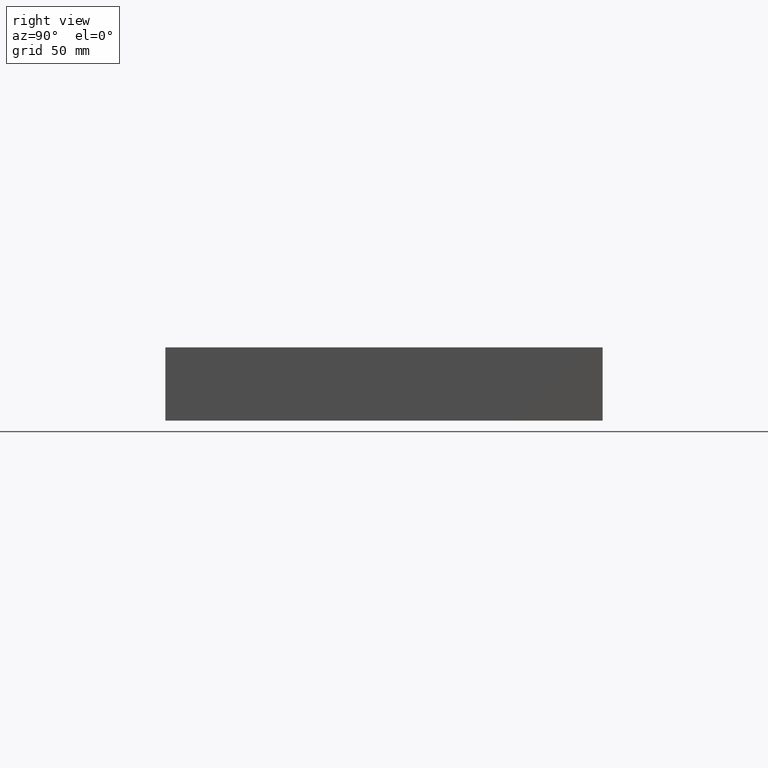
[diagram: clean part render]
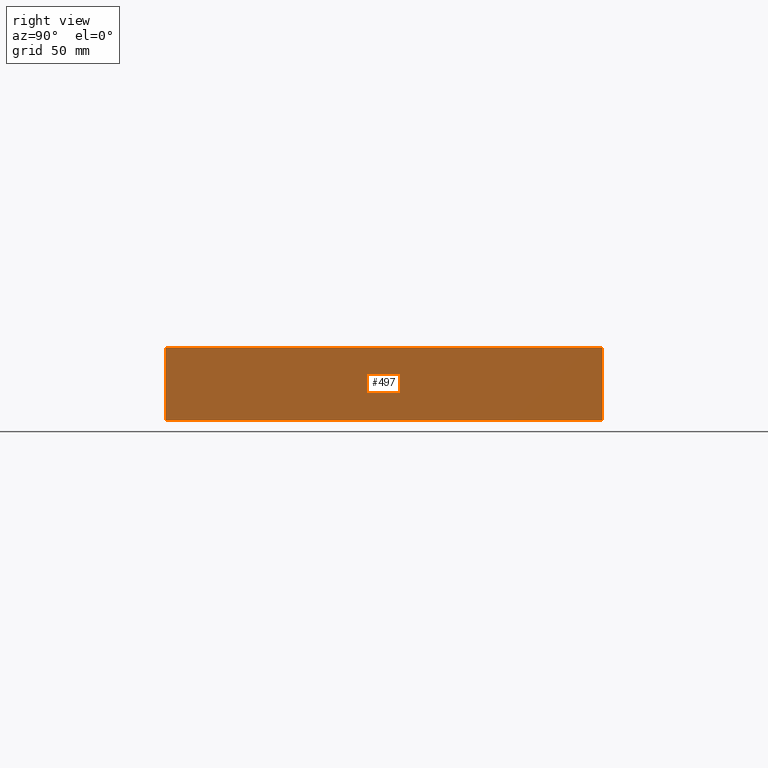
[diagram: same view with one face highlighted and labeled with its STEP entity id]
A machine part, right view. The second image highlights one B-rep face of the part: STEP entity #497.
In plain terms, the highlighted planar face has unit normal (1, -0, 0).
Its self-contained STEP definition (entity closure, byte-faithful):
#497 = ADVANCED_FACE( '', ( #1040 ), #1041, .T. );
#1040 = FACE_OUTER_BOUND( '', #1661, .T. );
#1041 = PLANE( '', #1662 );
#1661 = EDGE_LOOP( '', ( #3327, #3328, #3329, #3330 ) );
#1662 = AXIS2_PLACEMENT_3D( '', #3331, #3332, #3333 );
#3327 = ORIENTED_EDGE( '', *, *, #4221, .F. );
#3328 = ORIENTED_EDGE( '', *, *, #4177, .F. );
#3329 = ORIENTED_EDGE( '', *, *, #3922, .T. );
#3330 = ORIENTED_EDGE( '', *, *, #3949, .T. );
#3331 = CARTESIAN_POINT( '', ( 139.000000000000, 6.75807294783561E-015, -35.0000000000000 ) );
#3332 = DIRECTION( '', ( 1.00000000000000, -2.65603594407932E-016, 0.000000000000000 ) );
#3333 = DIRECTION( '', ( 2.65603594407932E-016, 1.00000000000000, 0.000000000000000 ) );
#3922 = EDGE_CURVE( '', #4598, #4596, #4599, .T. );
#3949 = EDGE_CURVE( '', #4596, #4638, #4641, .T. );
#4177 = EDGE_CURVE( '', #4598, #4963, #4965, .T. );
#4221 = EDGE_CURVE( '', #4963, #4638, #5024, .T. );
#4596 = VERTEX_POINT( '', #5996 );
#4598 = VERTEX_POINT( '', #5999 );
#4599 = LINE( '', #6000, #6001 );
#4638 = VERTEX_POINT( '', #6055 );
#4641 = LINE( '', #6059, #6060 );
#4963 = VERTEX_POINT( '', #6885 );
#4965 = LINE( '', #6888, #6889 );
#5024 = LINE( '', #7039, #7040 );
#5996 = CARTESIAN_POINT( '', ( 139.000000000000, 209.000000000000, -35.0000000000000 ) );
#5999 = CARTESIAN_POINT( '', ( 139.000000000000, 6.75807294783561E-015, -35.0000000000000 ) );
#6000 = CARTESIAN_POINT( '', ( 139.000000000000, 6.75807294783561E-015, -35.0000000000000 ) );
#6001 = VECTOR( '', #7380, 1000.00000000000 );
#6055 = CARTESIAN_POINT( '', ( 139.000000000000, 209.000000000000, 0.000000000000000 ) );
#6059 = CARTESIAN_POINT( '', ( 139.000000000000, 209.000000000000, -35.0000000000000 ) );
#6060 = VECTOR( '', #7406, 1000.00000000000 );
#6885 = CARTESIAN_POINT( '', ( 139.000000000000, 6.75807294783561E-015, 0.000000000000000 ) );
#6888 = CARTESIAN_POINT( '', ( 139.000000000000, 6.75807294783561E-015, -35.0000000000000 ) );
#6889 = VECTOR( '', #7580, 1000.00000000000 );
#7039 = CARTESIAN_POINT( '', ( 139.000000000000, 6.75807294783561E-015, 0.000000000000000 ) );
#7040 = VECTOR( '', #7608, 1000.00000000000 );
#7380 = DIRECTION( '', ( 2.65603594407932E-016, 1.00000000000000, 0.000000000000000 ) );
#7406 = DIRECTION( '', ( 0.000000000000000, 0.000000000000000, 1.00000000000000 ) );
#7580 = DIRECTION( '', ( 0.000000000000000, 0.000000000000000, 1.00000000000000 ) );
#7608 = DIRECTION( '', ( 2.65603594407932E-016, 1.00000000000000, 0.000000000000000 ) );